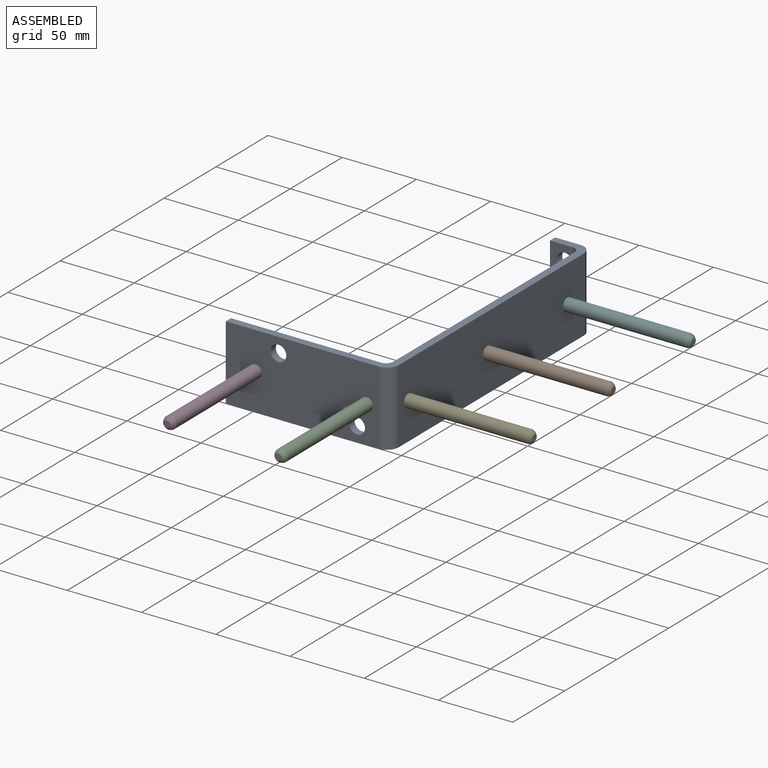
[diagram: assembled view]
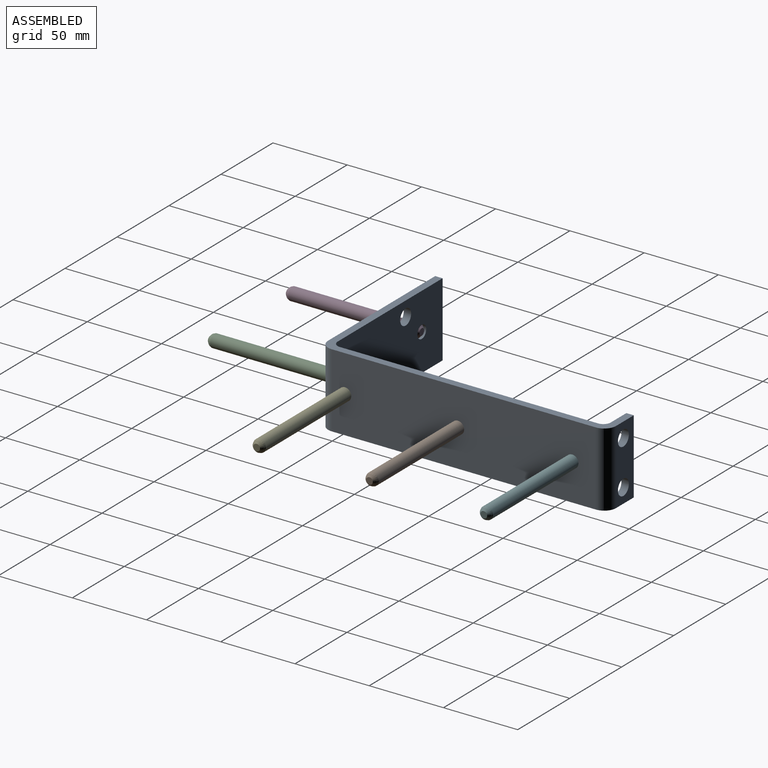
[diagram: assembled view, second angle]
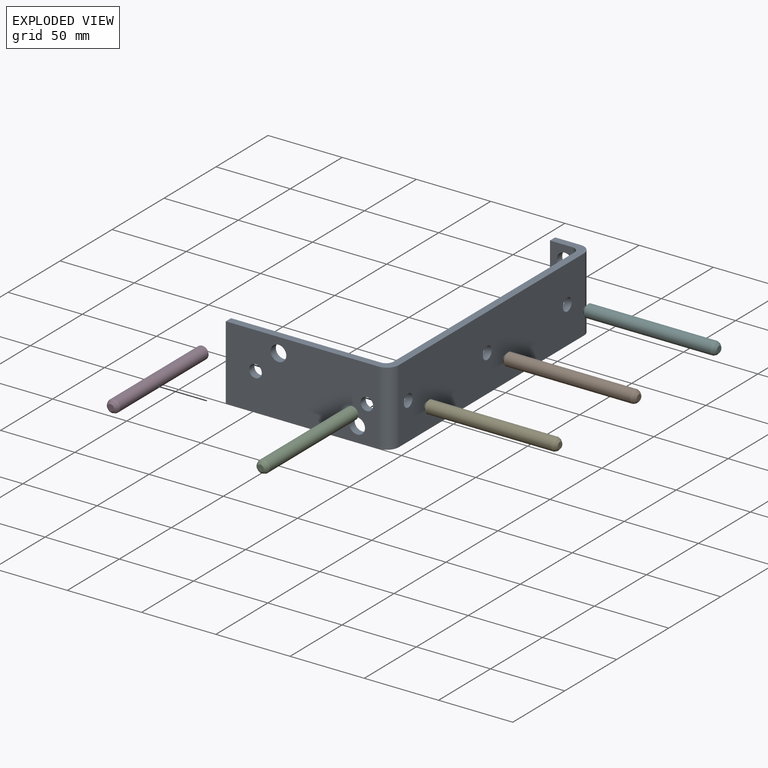
[diagram: exploded view]
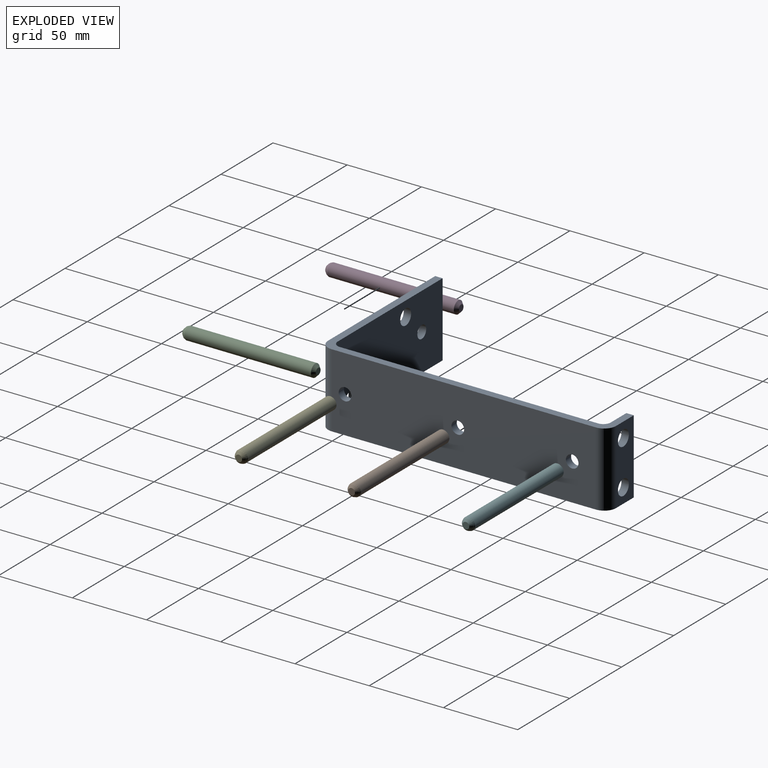
[diagram: exploded view, second angle]
ASSEMBLY  parts=6 mates=3
PART A: 23 faces, bbox 111x194x50 mm
  f0: plane 50x17mm, normal (0,1,0), area 676.8mm2, adj f1,f11,f12,f13,f21,f22
  f1: plane 50x5mm, normal (-1,0,0), area 250mm2, adj f0,f2,f12,f13
  f2: plane 50x15mm, normal (0,-1,0), area 577.9mm2, adj f1,f3,f12,f13,f21,f22
  f3: cylinder r=5mm len=50mm, axis (0,0,-1), area 391.6mm2, adj f2,f4,f12,f13,f21,f22
  f4: plane 174x50mm, normal (-1,0,0), area 8529.8mm2, adj f3,f5,f12,f13,f18,f19,f20
  f5: cylinder r=5mm len=50mm, axis (0,0,-1), area 392.7mm2, adj f4,f6,f12,f13
  f6: plane 101x50mm, normal (0,1,0), area 4763.3mm2, adj f5,f7,f12,f13,f14,f15,f16,f17
  f7: plane 50x5mm, normal (-1,0,0), area 250mm2, adj f6,f8,f12,f13
  f8: plane 103x50mm, normal (0,-1,0), area 4863.3mm2, adj f7,f9,f12,f13,f14,f15,f16,f17
  f9: cylinder r=8mm len=50mm, axis (0,0,-1), area 628.3mm2, adj f8,f10,f12,f13
  f10: plane 178x50mm, normal (1,0,0), area 8729.8mm2, adj f9,f11,f12,f13,f18,f19,f20
  f11: cylinder r=8mm len=50mm, axis (0,0,-1), area 628.3mm2, adj f0,f10,f12,f13
  f12: plane 194x111mm, normal (0,0,1), area 1583.3mm2, adj f0,f1,f2,f3,f4,f5,f6,f7
  f13: plane 194x111mm, normal (0,0,-1), area 1583.3mm2, adj f0,f1,f2,f3,f4,f5,f6,f7
  f14: cylinder r=5.25mm len=10.5mm, axis (0,-1,0), area 164.9mm2, adj f6,f8
  f15: cylinder r=4.25mm len=8.5mm, axis (0,-1,0), area 133.5mm2, adj f6,f8
  f16: cylinder r=4.25mm len=8.5mm, axis (0,-1,0), area 133.5mm2, adj f6,f8
  f17: cylinder r=5.25mm len=10.5mm, axis (0,-1,0), area 164.9mm2, adj f6,f8
  f18: cylinder r=4.25mm len=8.5mm, axis (-1,0,0), area 133.5mm2, adj f4,f10
  f19: cylinder r=4.25mm len=8.5mm, axis (-1,0,0), area 133.5mm2, adj f4,f10
  f20: cylinder r=4.25mm len=8.5mm, axis (-1,0,0), area 133.5mm2, adj f4,f10
  f21: cylinder r=5.25mm len=10.5mm, axis (0,1,0), area 164.9mm2, adj f0,f2,f3
  f22: cylinder r=5.25mm len=10.5mm, axis (0,1,0), area 164.9mm2, adj f0,f2,f3
PART B: 6 faces, bbox 90x8.5x8.5 mm
  f0: cylinder r=4.25mm len=85.17mm, axis (-1,0,0), area 2274.4mm2, adj f4,f5
  f1: plane 4.5x4.5mm, normal (1,0,0), area 15.9mm2, adj f3
  f2: plane 4.5x4.5mm, normal (-1,0,0), area 15.9mm2, adj f5
  f3: cone r=2.25mm half-angle=45deg, axis (-1,0,0), area 37.2mm2, adj f1,f4
  f4: cone r=4.25mm half-angle=22.5deg, axis (-1,0,0), area 38.1mm2, adj f0,f3
  f5: cone r=4.25mm half-angle=45deg, axis (1,0,0), area 57.8mm2, adj f0,f2
PART C: same geometry as B
PART D: same geometry as B
PART E: same geometry as B
PART F: same geometry as B
PLACE A t=(0,-12.06,64)mm fixed
PLACE B t=(-5,35.55,16.43)mm fixed
PLACE C rot(axis=(-0.58,0.58,-0.58),120deg) t=(-14.56,-55.06,12.39)mm
PLACE D rot(axis=(0,0,-1),90deg) t=(9.61,-55.06,16.43)mm
PLACE E t=(-5,-40.45,16.43)mm fixed
PLACE F t=(-5,112.55,16.43)mm fixed
MATE slider F.f0 <-> A.f20  axis (-1,0,0) through (88.59,60.94,64)mm
MATE cylindrical C.f0 <-> A.f15  axis (0,1,0) through (33,-106.06,64)mm
MATE slider E.f0 <-> A.f18  axis (-1,0,0) through (46,-92.06,64)mm
